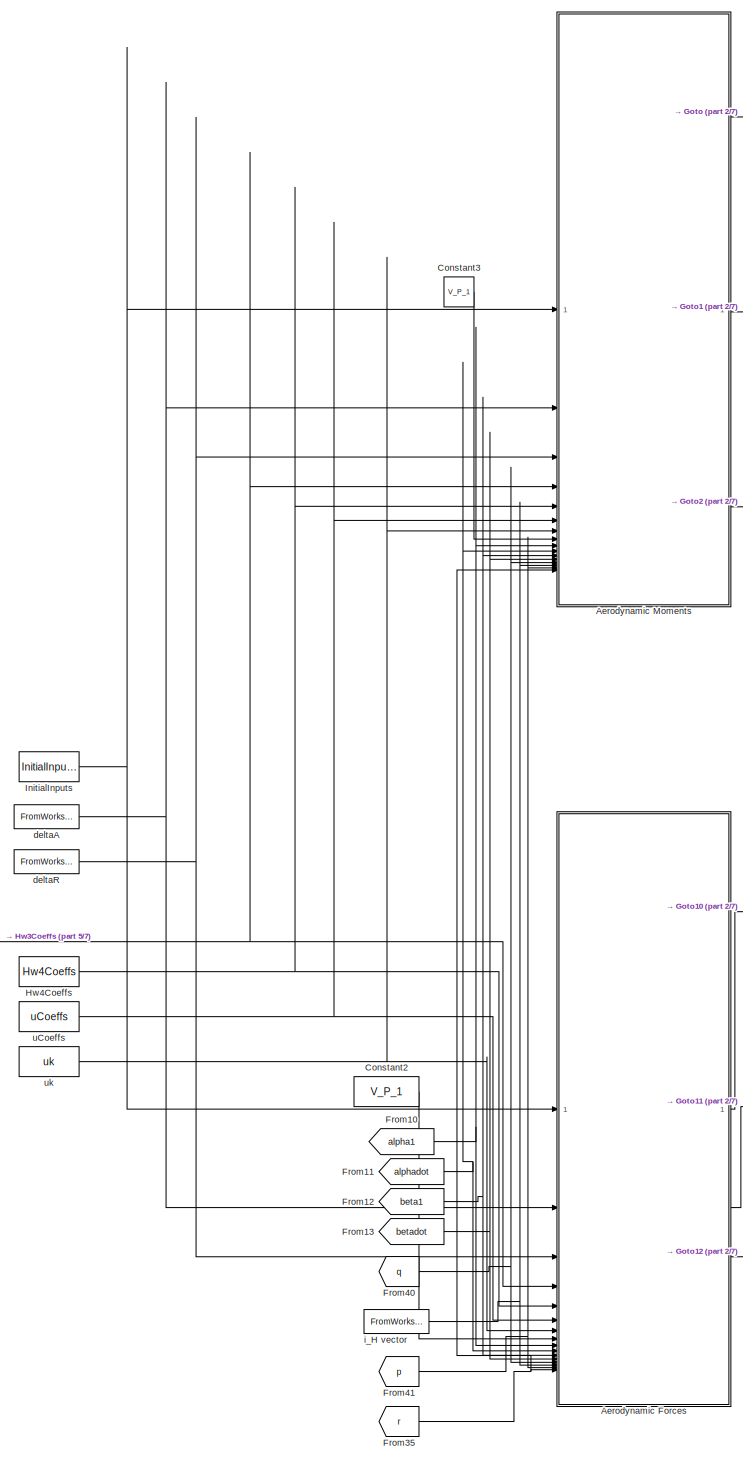
[diagram: root canvas - part 1/7, left side, full height]
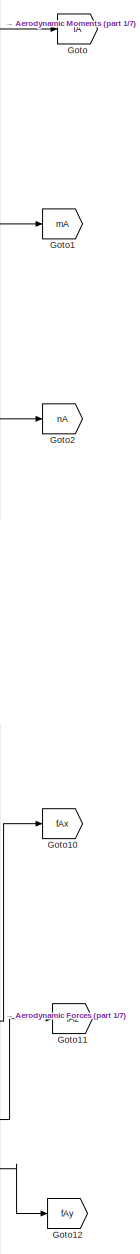
[diagram: root canvas - part 2/7, middle left region]
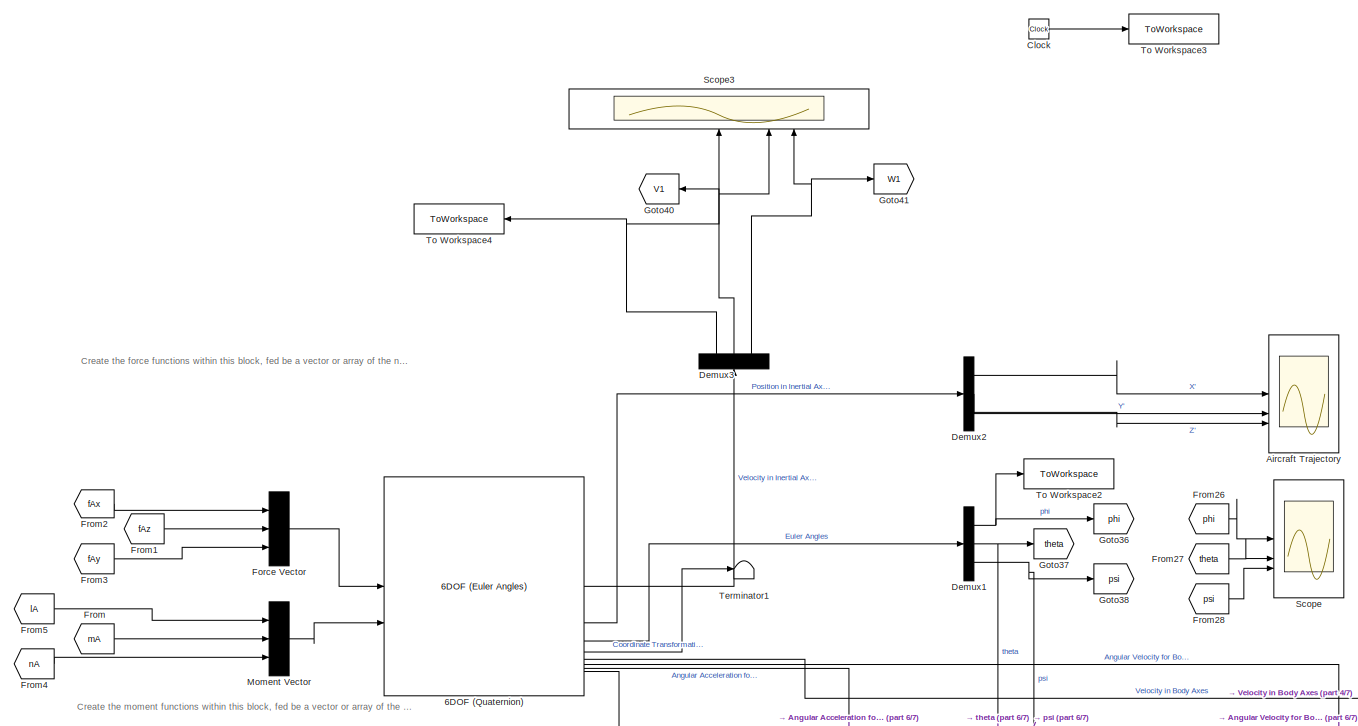
[diagram: root canvas - part 3/7, central region]
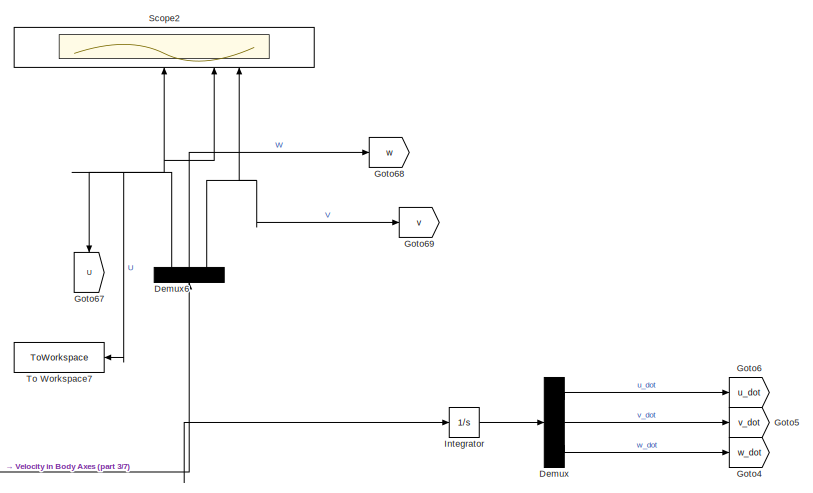
[diagram: root canvas - part 4/7, middle right region]
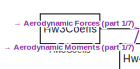
[diagram: root canvas - part 5/7, middle left region]
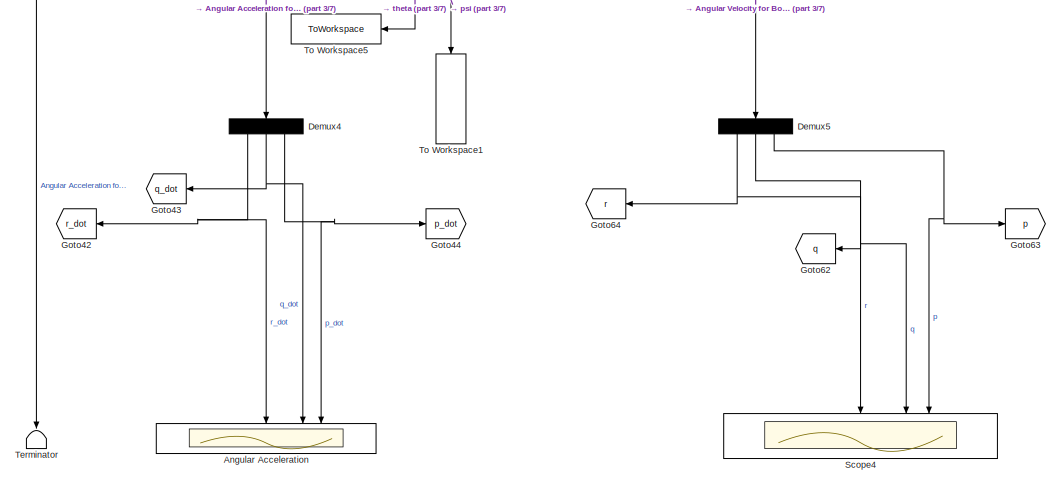
[diagram: root canvas - part 6/7, bottom right region]
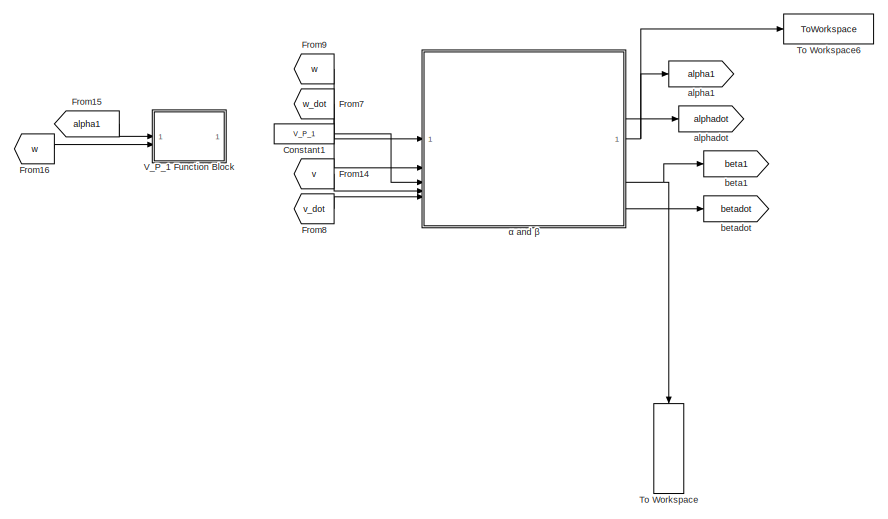
[diagram: root canvas - part 7/7, bottom left region]
MODEL slx_4504bdd6845c
KIND model
CONFIG AbsTol = auto
CONFIG EnableMultiTasking = off
CONFIG FixedStep = Ts
CONFIG MaxStep = auto
CONFIG MinStep = auto
CONFIG RelTol = 1e-3
CONFIG SampleTimeConstraint = Unconstrained
CONFIG SolverName = ode4
CONFIG StartTime = 0.0
CONFIG StopTime = tf
WORKSPACE source: mxarray member
WORKSPACE PositionStateAttributes: object (value not decoded)
WORKSPACE QuaternionStateAttributes: object (value not decoded)
WORKSPACE RotationStateAttributes: object (value not decoded)
WORKSPACE VelocityStateAttributes: object (value not decoded)
BLOCK [Reference] 6DOF (Quaternion)  REF=shared6dof/6DOF (Euler Angles)
  LibrarySourceBlock = aerolib6dof2/6DOF (Quaternion)
  SourceBlock = shared6dof/6DOF (Euler Angles)
  SourceType = 6DOF EoM (Body Axis)
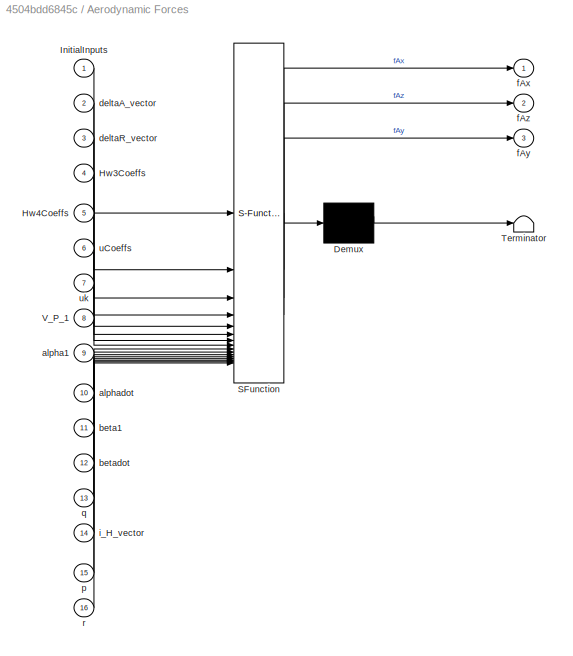
BLOCK [SubSystem] Aerodynamic Forces
  ErrorFcn = Stateflow.Translate.translate
  PermitHierarchicalResolution = ExplicitOnly
  SFBlockType = MATLAB Function
  TreatAsAtomicUnit = on
BLOCK [Demux] Aerodynamic Forces/ Demux 
  Outputs = 1
BLOCK [S-Function] Aerodynamic Forces/ SFunction 
  EnableBusSupport = on
  FunctionName = sf_sfun
  PortCounts = [16 4]
  SFcnIsStateOwnerBlock = off
  SFunctionDeploymentMode = off
  Tag = Stateflow S-Function 13
BLOCK [Terminator] Aerodynamic Forces/ Terminator 
BLOCK [Inport] Aerodynamic Forces/Hw3Coeffs
  Port = 4
BLOCK [Inport] Aerodynamic Forces/Hw4Coeffs
  Port = 5
BLOCK [Inport] Aerodynamic Forces/InitialInputs
BLOCK [Inport] Aerodynamic Forces/V_P_1
  Port = 8
BLOCK [Inport] Aerodynamic Forces/alpha1
  Port = 9
BLOCK [Inport] Aerodynamic Forces/alphadot
  Port = 10
BLOCK [Inport] Aerodynamic Forces/beta1
  Port = 11
BLOCK [Inport] Aerodynamic Forces/betadot
  Port = 12
BLOCK [Inport] Aerodynamic Forces/deltaA_vector
  Port = 2
BLOCK [Inport] Aerodynamic Forces/deltaR_vector
  Port = 3
BLOCK [Outport] Aerodynamic Forces/fAx
BLOCK [Outport] Aerodynamic Forces/fAy
  Port = 3
BLOCK [Outport] Aerodynamic Forces/fAz
  Port = 2
BLOCK [Inport] Aerodynamic Forces/i_H_vector
  Port = 14
BLOCK [Inport] Aerodynamic Forces/p
  Port = 15
BLOCK [Inport] Aerodynamic Forces/q
  Port = 13
BLOCK [Inport] Aerodynamic Forces/r
  Port = 16
BLOCK [Inport] Aerodynamic Forces/uCoeffs
  Port = 6
BLOCK [Inport] Aerodynamic Forces/uk
  Port = 7
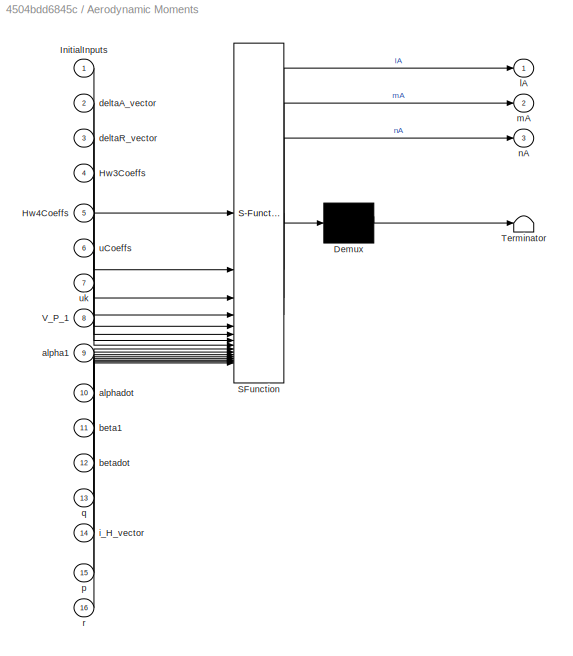
BLOCK [SubSystem] Aerodynamic Moments
  ErrorFcn = Stateflow.Translate.translate
  PermitHierarchicalResolution = ExplicitOnly
  SFBlockType = MATLAB Function
  TreatAsAtomicUnit = on
BLOCK [Demux] Aerodynamic Moments/ Demux 
  Outputs = 1
BLOCK [S-Function] Aerodynamic Moments/ SFunction 
  EnableBusSupport = on
  FunctionName = sf_sfun
  PortCounts = [16 4]
  SFcnIsStateOwnerBlock = off
  SFunctionDeploymentMode = off
  Tag = Stateflow S-Function 3
BLOCK [Terminator] Aerodynamic Moments/ Terminator 
BLOCK [Inport] Aerodynamic Moments/Hw3Coeffs
  Port = 4
BLOCK [Inport] Aerodynamic Moments/Hw4Coeffs
  Port = 5
BLOCK [Inport] Aerodynamic Moments/InitialInputs
BLOCK [Inport] Aerodynamic Moments/V_P_1
  Port = 8
BLOCK [Inport] Aerodynamic Moments/alpha1
  Port = 9
BLOCK [Inport] Aerodynamic Moments/alphadot
  Port = 10
BLOCK [Inport] Aerodynamic Moments/beta1
  Port = 11
BLOCK [Inport] Aerodynamic Moments/betadot
  Port = 12
BLOCK [Inport] Aerodynamic Moments/deltaA_vector
  Port = 2
BLOCK [Inport] Aerodynamic Moments/deltaR_vector
  Port = 3
BLOCK [Inport] Aerodynamic Moments/i_H_vector
  Port = 14
BLOCK [Outport] Aerodynamic Moments/lA
BLOCK [Outport] Aerodynamic Moments/mA
  Port = 2
BLOCK [Outport] Aerodynamic Moments/nA
  Port = 3
BLOCK [Inport] Aerodynamic Moments/p
  Port = 15
BLOCK [Inport] Aerodynamic Moments/q
  Port = 13
BLOCK [Inport] Aerodynamic Moments/r
  Port = 16
BLOCK [Inport] Aerodynamic Moments/uCoeffs
  Port = 6
BLOCK [Inport] Aerodynamic Moments/uk
  Port = 7
BLOCK [Scope] Aircraft Trajectory
  Floating = off
  NumInputPorts = 3
  ScopeSpecificationString = Simulink.scopes.TimeScopeBlockCfg('CurrentConfiguration', extmgr.ConfigurationSet(extmgr.Configuration('Core','General UI',true),extmgr.Configuration('Core','Source UI',true),extmgr.Configuration('Sources','WiredSimulink',true,'DataLoggingVariableName','ScopeData2'),extmgr.Configuration('Visuals','Time Domain',true),extmgr.Configuration('Tools','Plot Navigation',true),extmgr.Configuration('Tools',...<+58ch>
BLOCK [Scope] Angular Acceleration
  Floating = off
  NumInputPorts = 3
  ScopeSpecificationString = Simulink.scopes.TimeScopeBlockCfg('CurrentConfiguration', extmgr.ConfigurationSet(extmgr.Configuration('Core','General UI',true),extmgr.Configuration('Core','Source UI',true),extmgr.Configuration('Sources','WiredSimulink',true,'DataLoggingVariableName','ScopeData4'),extmgr.Configuration('Visuals','Time Domain',true),extmgr.Configuration('Tools','Plot Navigation',true),extmgr.Configuration('Tools',...<+40ch>
BLOCK [Clock] Clock
BLOCK [Constant] Constant1
  Value = V_P_1
BLOCK [Constant] Constant2
  Value = V_P_1
BLOCK [Constant] Constant3
  Value = V_P_1
BLOCK [Demux] Demux
  Outputs = 3
BLOCK [Demux] Demux1
  Outputs = 3
BLOCK [Demux] Demux2
  Outputs = 3
BLOCK [Demux] Demux3
  NameLocation = right
  Outputs = 3
BLOCK [Demux] Demux4
  NameLocation = left
  Outputs = 3
BLOCK [Demux] Demux5
  NameLocation = left
  Outputs = 3
BLOCK [Demux] Demux6
  NameLocation = right
  Outputs = 3
BLOCK [Mux] Force Vector
  DisplayOption = bar
  Inputs = 3
BLOCK [From] From
  GotoTag = mA
BLOCK [From] From1
  GotoTag = fAz
BLOCK [From] From10
  GotoTag = alpha1
BLOCK [From] From11
  GotoTag = alphadot
BLOCK [From] From12
  GotoTag = beta1
BLOCK [From] From13
  GotoTag = betadot
BLOCK [From] From14
  GotoTag = v
BLOCK [From] From15
  Commented = on
  GotoTag = alpha1
BLOCK [From] From16
  Commented = on
  GotoTag = w
BLOCK [From] From2
  GotoTag = fAx
BLOCK [From] From26
  GotoTag = phi
BLOCK [From] From27
  GotoTag = theta
BLOCK [From] From28
  GotoTag = psi
BLOCK [From] From3
  GotoTag = fAy
BLOCK [From] From35
  GotoTag = r
BLOCK [From] From4
  GotoTag = nA
BLOCK [From] From40
  GotoTag = q
BLOCK [From] From41
  GotoTag = p
BLOCK [From] From5
  GotoTag = lA
BLOCK [From] From7
  GotoTag = w_dot
BLOCK [From] From8
  GotoTag = v_dot
BLOCK [From] From9
  GotoTag = w
BLOCK [Goto] Goto
  GotoTag = lA
BLOCK [Goto] Goto1
  GotoTag = mA
BLOCK [Goto] Goto10
  GotoTag = fAx
BLOCK [Goto] Goto11
  GotoTag = fAz
BLOCK [Goto] Goto12
  GotoTag = fAy
BLOCK [Goto] Goto2
  GotoTag = nA
BLOCK [Goto] Goto36
  GotoTag = phi
BLOCK [Goto] Goto37
  GotoTag = theta
BLOCK [Goto] Goto38
  GotoTag = psi
BLOCK [Goto] Goto4
  GotoTag = w_dot
BLOCK [Goto] Goto40
  GotoTag = V1
BLOCK [Goto] Goto41
  GotoTag = W1
BLOCK [Goto] Goto42
  GotoTag = r_dot
BLOCK [Goto] Goto43
  GotoTag = q_dot
BLOCK [Goto] Goto44
  GotoTag = p_dot
BLOCK [Goto] Goto5
  GotoTag = v_dot
  NameLocation = top
BLOCK [Goto] Goto6
  GotoTag = u_dot
BLOCK [Goto] Goto62
  GotoTag = q
BLOCK [Goto] Goto63
  GotoTag = p
BLOCK [Goto] Goto64
  GotoTag = r
BLOCK [Goto] Goto67
  GotoTag = U
  NameLocation = left
BLOCK [Goto] Goto68
  GotoTag = w
BLOCK [Goto] Goto69
  GotoTag = v
  NameLocation = top
BLOCK [Constant] Hw3Coeffs
  Value = Hw3Coeffs
BLOCK [Constant] Hw4Coeffs
  Value = Hw4Coeffs
BLOCK [Constant] InitialInputs
  Value = InitialInputs
BLOCK [Integrator] Integrator
BLOCK [Mux] Moment Vector
  DisplayOption = bar
  Inputs = 3
BLOCK [Scope] Scope
  Floating = off
  NumInputPorts = 3
  ScopeSpecificationString = Simulink.scopes.TimeScopeBlockCfg('CurrentConfiguration', extmgr.ConfigurationSet(extmgr.Configuration('Core','General UI',true),extmgr.Configuration('Core','Source UI',true),extmgr.Configuration('Sources','WiredSimulink',true,'DataLoggingVariableName','ScopeData1'),extmgr.Configuration('Visuals','Time Domain',true,'SerializedDisplays',{struct('MinYLimReal','-3.92542','MaxYLimReal','3.92338','YLab...<+1411ch>
BLOCK [Scope] Scope2
  Floating = off
  NameLocation = right
  NumInputPorts = 3
  ScopeSpecificationString = Simulink.scopes.TimeScopeBlockCfg('CurrentConfiguration', extmgr.ConfigurationSet(extmgr.Configuration('Core','General UI',true),extmgr.Configuration('Core','Source UI',true),extmgr.Configuration('Sources','WiredSimulink',true,'DataLoggingVariableName','ScopeData1'),extmgr.Configuration('Visuals','Time Domain',true,'SerializedDisplays',{struct('MinYLimReal','-2023.78981','MaxYLimReal','7282.61836'...<+1388ch>
BLOCK [Scope] Scope3
  Floating = off
  NameLocation = right
  NumInputPorts = 3
  ScopeSpecificationString = Simulink.scopes.TimeScopeBlockCfg('CurrentConfiguration', extmgr.ConfigurationSet(extmgr.Configuration('Core','General UI',true),extmgr.Configuration('Core','Source UI',true),extmgr.Configuration('Sources','WiredSimulink',true,'DataLoggingVariableName','ScopeData3'),extmgr.Configuration('Visuals','Time Domain',true,'SerializedDisplays',{struct('MinYLimReal','-2284.42688','MaxYLimReal','7138.25815'...<+1411ch>
BLOCK [Scope] Scope4
  Floating = off
  NameLocation = left
  NumInputPorts = 3
  ScopeSpecificationString = Simulink.scopes.TimeScopeBlockCfg('CurrentConfiguration', extmgr.ConfigurationSet(extmgr.Configuration('Core','General UI',true),extmgr.Configuration('Core','Source UI',true),extmgr.Configuration('Sources','WiredSimulink',true,'DataLoggingVariableName','ScopeData5'),extmgr.Configuration('Visuals','Time Domain',true),extmgr.Configuration('Tools','Plot Navigation',true),extmgr.Configuration('Tools',...<+40ch>
BLOCK [Terminator] Terminator
  NameLocation = left
BLOCK [Terminator] Terminator1
BLOCK [ToWorkspace] To Workspace
  MaxDataPoints = inf
  NameLocation = left
  SampleTime = -1
  Save2DSignal = 2-D array (concatenate along first dimension)
  VariableName = beta1
BLOCK [ToWorkspace] To Workspace1
  FixptAsFi = on
  MaxDataPoints = inf
  NameLocation = left
  SampleTime = -1
  Save2DSignal = 2-D array (concatenate along first dimension)
  VariableName = psi
BLOCK [ToWorkspace] To Workspace2
  FixptAsFi = on
  MaxDataPoints = inf
  SampleTime = -1
  Save2DSignal = 2-D array (concatenate along first dimension)
  VariableName = phi
BLOCK [ToWorkspace] To Workspace3
  FixptAsFi = on
  MaxDataPoints = inf
  SampleTime = -1
  SaveFormat = Timeseries
  VariableName = time
BLOCK [ToWorkspace] To Workspace4
  FixptAsFi = on
  MaxDataPoints = inf
  NameLocation = top
  SampleTime = -1
  Save2DSignal = 2-D array (concatenate along first dimension)
  VariableName = u1
BLOCK [ToWorkspace] To Workspace5
  FixptAsFi = on
  MaxDataPoints = inf
  NameLocation = top
  SampleTime = -1
  Save2DSignal = 2-D array (concatenate along first dimension)
  VariableName = theta
BLOCK [ToWorkspace] To Workspace6
  MaxDataPoints = inf
  SampleTime = -1
  Save2DSignal = 2-D array (concatenate along first dimension)
  VariableName = alpha1
BLOCK [ToWorkspace] To Workspace7
  FixptAsFi = on
  MaxDataPoints = inf
  NameLocation = top
  SampleTime = -1
  Save2DSignal = 2-D array (concatenate along first dimension)
  VariableName = u
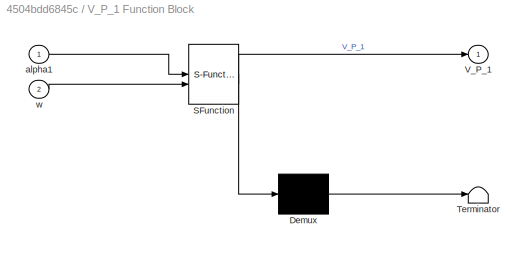
BLOCK [SubSystem] V_P_1 Function Block
  Commented = on
  ErrorFcn = Stateflow.Translate.translate
  PermitHierarchicalResolution = ExplicitOnly
  SFBlockType = MATLAB Function
  TreatAsAtomicUnit = on
BLOCK [Demux] V_P_1 Function Block/ Demux 
  Outputs = 1
BLOCK [S-Function] V_P_1 Function Block/ SFunction 
  EnableBusSupport = off
  FunctionName = sf_sfun
  PortCounts = [2 2]
  SFcnIsStateOwnerBlock = off
  SFunctionDeploymentMode = off
  Tag = Stateflow S-Function 2
BLOCK [Terminator] V_P_1 Function Block/ Terminator 
BLOCK [Outport] V_P_1 Function Block/V_P_1
BLOCK [Inport] V_P_1 Function Block/alpha1
BLOCK [Inport] V_P_1 Function Block/w
  Port = 2
BLOCK [Goto] alpha1
  GotoTag = alpha1
BLOCK [Goto] alphadot
  GotoTag = alphadot
BLOCK [Goto] beta1
  GotoTag = beta1
BLOCK [Goto] betadot
  GotoTag = betadot
BLOCK [FromWorkspace] deltaA 
  OutDataTypeStr = double
  VariableName = deltaA_vector
BLOCK [FromWorkspace] deltaR 
  OutDataTypeStr = double
  VariableName = deltaR_vector
BLOCK [FromWorkspace] i_H vector 
  VariableName = i_H_vector
BLOCK [Constant] uCoeffs
  Value = uCoeffs
BLOCK [Constant] uk
  Value = uk
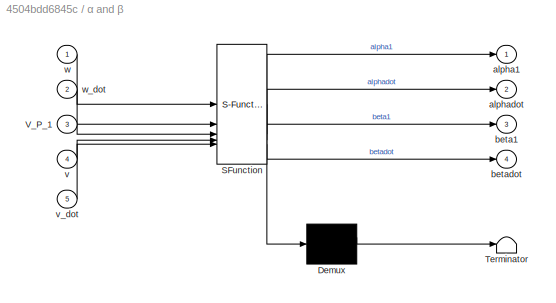
BLOCK [SubSystem] α and β
  ErrorFcn = Stateflow.Translate.translate
  PermitHierarchicalResolution = ExplicitOnly
  SFBlockType = MATLAB Function
  TreatAsAtomicUnit = on
BLOCK [Demux] α and β/ Demux 
  Outputs = 1
BLOCK [S-Function] α and β/ SFunction 
  EnableBusSupport = on
  FunctionName = sf_sfun
  PortCounts = [5 5]
  SFcnIsStateOwnerBlock = off
  SFunctionDeploymentMode = off
  Tag = Stateflow S-Function 1
BLOCK [Terminator] α and β/ Terminator 
BLOCK [Inport] α and β/V_P_1
  Port = 3
BLOCK [Outport] α and β/alpha1
BLOCK [Outport] α and β/alphadot
  Port = 2
BLOCK [Outport] α and β/beta1
  Port = 3
BLOCK [Outport] α and β/betadot
  Port = 4
BLOCK [Inport] α and β/v
  Port = 4
BLOCK [Inport] α and β/v_dot
  Port = 5
BLOCK [Inport] α and β/w
BLOCK [Inport] α and β/w_dot
  Port = 2
ANNOTATION (root): Create the force functions within this block, fed be a vector or array of the needed variables
ANNOTATION (root): Create the moment functions within this block, fed be a vector or array of the needed variables
LINE 6DOF (Quaternion):1 -> Demux3:1
LINE 6DOF (Quaternion):2 -> Demux2:1
LINE 6DOF (Quaternion):3 -> Demux1:1
LINE 6DOF (Quaternion):4 -> Terminator1:1
NET 6DOF (Quaternion):5 -> Demux6:1, Integrator:1
LINE 6DOF (Quaternion):6 -> Demux5:1
LINE 6DOF (Quaternion):7 -> Demux4:1
LINE 6DOF (Quaternion):8 -> Terminator:1
LINE Aerodynamic Forces:1 -> Goto10:1
LINE Aerodynamic Forces:2 -> Goto11:1
LINE Aerodynamic Forces:3 -> Goto12:1
LINE Aerodynamic Moments:1 -> Goto:1
LINE Aerodynamic Moments:2 -> Goto1:1
LINE Aerodynamic Moments:3 -> Goto2:1
LINE Clock:1 -> To Workspace3:1
LINE Constant1:1 -> α and β:3
LINE Constant2:1 -> Aerodynamic Forces:8
LINE Constant3:1 -> Aerodynamic Moments:8
NET Demux1:1 -> Goto36:1, To Workspace2:1
NET Demux1:2 -> Goto37:1, To Workspace5:1
NET Demux1:3 -> Goto38:1, To Workspace1:1
LINE Demux2:1 -> Aircraft Trajectory:1
LINE Demux2:2 -> Aircraft Trajectory:2
LINE Demux2:3 -> Aircraft Trajectory:3
NET Demux3:1 -> Scope3:1, To Workspace4:1
NET Demux3:2 -> Goto40:1, Scope3:2
NET Demux3:3 -> Goto41:1, Scope3:3
NET Demux4:1 -> Angular Acceleration:1, Goto42:1
NET Demux4:2 -> Angular Acceleration:2, Goto43:1
NET Demux4:3 -> Angular Acceleration:3, Goto44:1
NET Demux5:1 -> Goto64:1, Scope4:1
NET Demux5:2 -> Goto62:1, Scope4:2
NET Demux5:3 -> Goto63:1, Scope4:3
NET Demux6:1 -> Goto67:1, Scope2:1, To Workspace7:1
NET Demux6:2 -> Goto68:1, Scope2:2
NET Demux6:3 -> Goto69:1, Scope2:3
LINE Demux:1 -> Goto6:1
LINE Demux:2 -> Goto5:1
LINE Demux:3 -> Goto4:1
LINE Force Vector:1 -> 6DOF (Quaternion):1
NET From10:1 -> Aerodynamic Forces:9, Aerodynamic Moments:9
NET From11:1 -> Aerodynamic Forces:10, Aerodynamic Moments:10
NET From12:1 -> Aerodynamic Forces:11, Aerodynamic Moments:11
NET From13:1 -> Aerodynamic Forces:12, Aerodynamic Moments:12
LINE From14:1 -> α and β:4
LINE From15:1 -> V_P_1 Function Block:1
LINE From16:1 -> V_P_1 Function Block:2
LINE From1:1 -> Force Vector:2
LINE From26:1 -> Scope:1
LINE From27:1 -> Scope:2
LINE From28:1 -> Scope:3
LINE From2:1 -> Force Vector:1
NET From35:1 -> Aerodynamic Forces:16, Aerodynamic Moments:16
LINE From3:1 -> Force Vector:3
NET From40:1 -> Aerodynamic Forces:13, Aerodynamic Moments:13
NET From41:1 -> Aerodynamic Forces:15, Aerodynamic Moments:15
LINE From4:1 -> Moment Vector:3
LINE From5:1 -> Moment Vector:1
LINE From7:1 -> α and β:2
LINE From8:1 -> α and β:5
LINE From9:1 -> α and β:1
LINE From:1 -> Moment Vector:2
NET Hw3Coeffs:1 -> Aerodynamic Forces:4, Aerodynamic Moments:4
NET Hw4Coeffs:1 -> Aerodynamic Forces:5, Aerodynamic Moments:5
NET InitialInputs:1 -> Aerodynamic Forces:1, Aerodynamic Moments:1
LINE Integrator:1 -> Demux:1
LINE Moment Vector:1 -> 6DOF (Quaternion):2
NET deltaA :1 -> Aerodynamic Forces:2, Aerodynamic Moments:2
NET deltaR :1 -> Aerodynamic Forces:3, Aerodynamic Moments:3
NET i_H vector :1 -> Aerodynamic Forces:14, Aerodynamic Moments:14
NET uCoeffs:1 -> Aerodynamic Forces:6, Aerodynamic Moments:6
NET uk:1 -> Aerodynamic Forces:7, Aerodynamic Moments:7
NET α and β:1 -> To Workspace6:1, alpha1:1
LINE α and β:2 -> alphadot:1
NET α and β:3 -> To Workspace:1, beta1:1
LINE α and β:4 -> betadot:1
note: NET lines group one-source signal fan-out (src -> all destinations, sorted); 1:1 wires keep LINE
CHART Aerodynamic Forces states=1 transitions=1
  STATE_LABEL 'eML_blk_kernel()'
  STATE_LABEL 'SCRIPT:\nfunction [ fAx, fAz,  fAy]  = fcn(InitialInputs, deltaA_vector, deltaR_vector, Hw3Coeffs, Hw4Coeffs, uCoeffs, uk, V_P_1, alpha1, alphadot, beta1, betadot, q, i_H_vector, p, r)\nqbar1 = InitialInputs(1); S_ft2 = InitialInputs(2); c_D_1 = InitialInputs(3); c_L_1 = InitialInputs(4); cbar_ft = InitialInputs(5); c_m_1 = InitialInputs(6); uv = InitialInputs(7); b_ft = InitialInputs(8);\n% deltaA_v...<+2540ch>'
CHART α and β states=1 transitions=1
  STATE_LABEL 'eML_blk_kernel()'
  STATE_LABEL 'SCRIPT:\nfunction [alpha1, alphadot, beta1, betadot] = fcn(w, w_dot, V_P_1, v, v_dot)\n\nalpha1 = w/V_P_1;\n\nalphadot = w_dot/V_P_1;\n\nbeta1 = v/V_P_1;\n\nbetadot = v_dot/V_P_1;\n\n'
CHART V_P_1 Function Block states=1 transitions=1
  STATE_LABEL 'eML_blk_kernel()'
  STATE_LABEL 'SCRIPT:\nfunction V_P_1 = fcn(alpha1,w)\n\nalpha1 = deg2rad(alpha1); \nV_P_1 = w/alpha1;\n\n\n\n\n'
CHART Aerodynamic Moments states=1 transitions=1
  STATE_LABEL 'eML_blk_kernel()'
  STATE_LABEL 'SCRIPT:\nfunction [lA,  mA, nA]  = fcn(InitialInputs, deltaA_vector, deltaR_vector, Hw3Coeffs, Hw4Coeffs, uCoeffs, uk, V_P_1, alpha1, alphadot, beta1, betadot, q, i_H_vector, p, r)\nqbar1 = InitialInputs(1); S_ft2 = InitialInputs(2); c_D_1 = InitialInputs(3); c_L_1 = InitialInputs(4); cbar_ft = InitialInputs(5); c_m_1 = InitialInputs(6); uv = InitialInputs(7); b_ft = InitialInputs(8);\n% deltaA_vecto...<+2546ch>'
CHART  states=0 transitions=0
CHART  states=0 transitions=0
CHART  states=0 transitions=0
CHART  states=0 transitions=0
